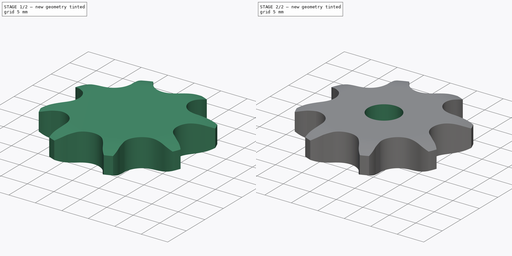
[diagram: build sequence overview — one tinted view per stage of 2, left to right]
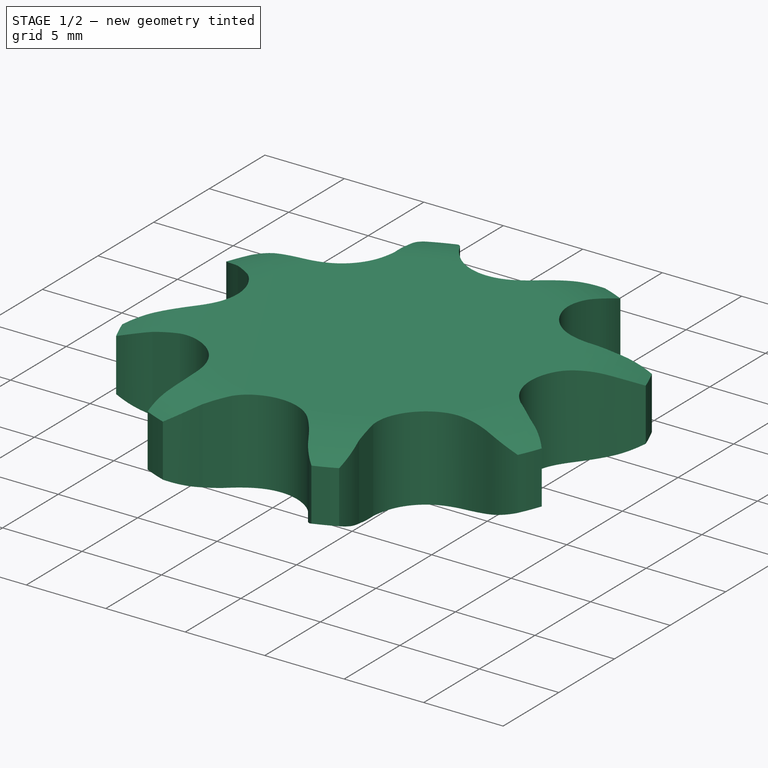
[diagram: stage 1 of 2 — iso view after this stage's code; geometry added in this stage tinted green]
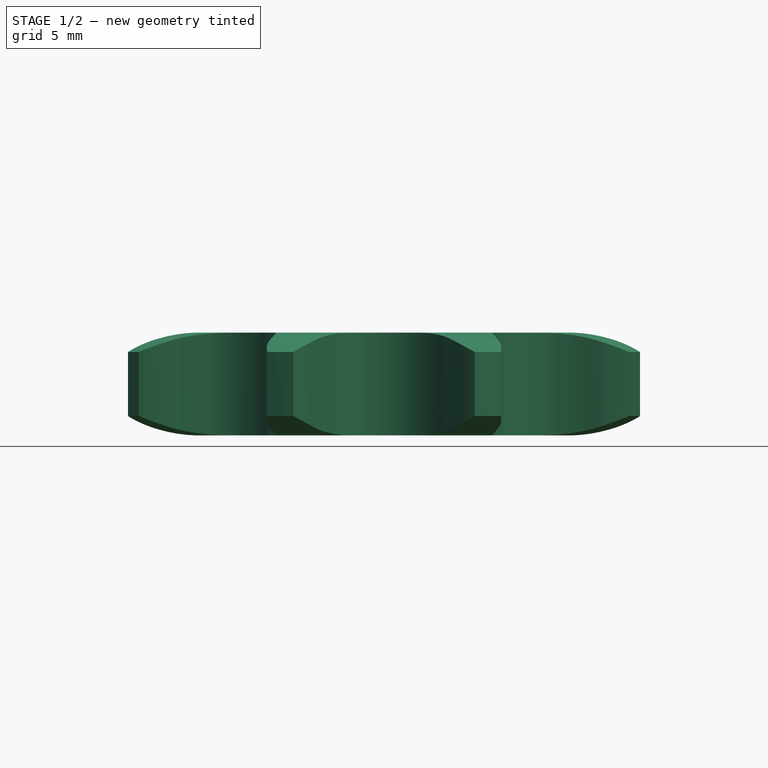
[diagram: stage 1 of 2 — front view after this stage's code; geometry added in this stage tinted green]
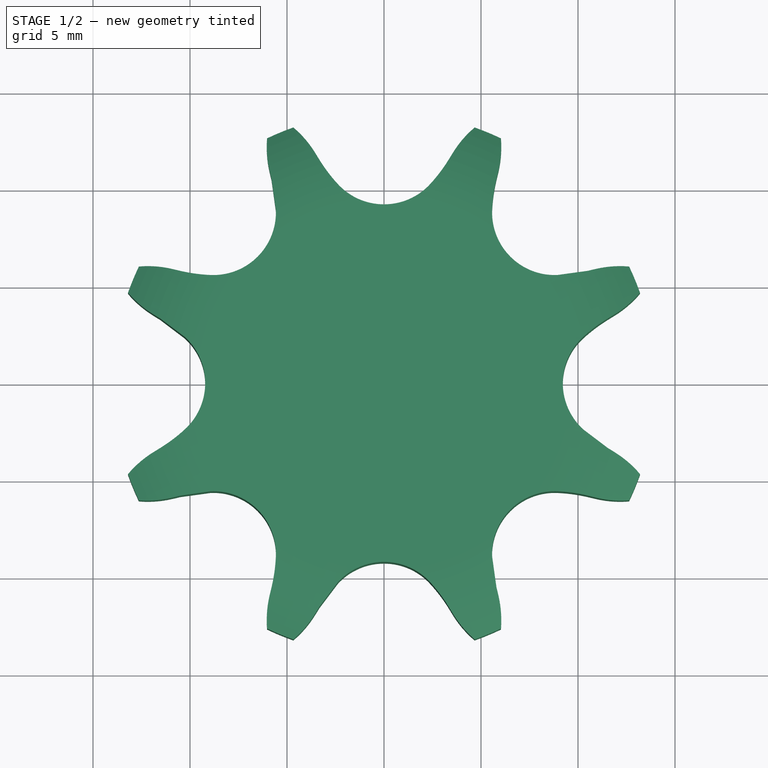
[diagram: stage 1 of 2 — top view after this stage's code; geometry added in this stage tinted green]
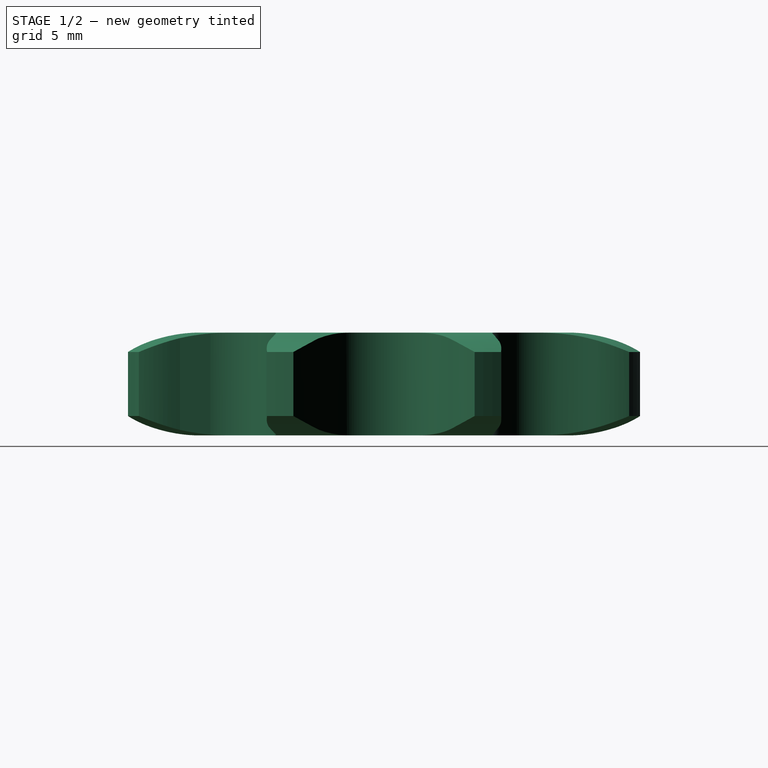
[diagram: stage 1 of 2 — right view after this stage's code; geometry added in this stage tinted green]
FCSTD DOCUMENT  (FreeCAD 0.20R29603 (Git))
Label: Plate Wheel simplex ⅜x⁷⁄₃₂
License: Attribution 4.0 International (CC BY 4.0)
LicenseURL: http://creativecommons.org/licenses/by/4.0/
objects: Sketcher::SketchObject×2, Spreadsheet::Sheet×1, Part::Part2DObjectPython×1, PartDesign::Pad×1, PartDesign::Groove×1, PartDesign::Pocket×1, PartDesign::Body×1
note: 10 computed .brp shape members not serialized (recipe doc carries the construction recipe); baked Part::Feature solids carry a one-line shape summary decoded from their .brp

FEATURE [Spreadsheet::Sheet] Spreadsheet  label="Data"
  TeethNumber = 0
  cells = A1=Teeth Number; B1=P (Pitch); C1=Wc (Chain width); D1=Dr (Roller diameter); E1=Tr (Tooth radius); F1=Rw (Radius width); G1=Wt (Tooth width); H1=z (Number of teeth); I1=De (External Diameter); J1=Dp (pitch diameter); K1=D (Hole diameter); L1=H (Total height); A2==hiddenref(.TeethNumber.String); B2(P)==.B3; C2(Wc)==.C3; D2(Dr)==.D3; E2(Tr)==.E3; F2(Rw)==.F3; G2(Wt)==.G3; H2(z)==.H3; I2(De)==.I3; J2(Dp)==.J3; K2(D)==.K3; L2(H)==.L3; A3=Z 8; B3=9.525; C3=5.72; D3=6.35; E3=10; F3=1; G3=5.3; H3=8; I3=28; J3=24.89; K3=6; L3=5.3; A4=Z 9; B4=9.525; C4=5.72; D4=6.35; E4=10; F4=1; G4=5.3; H4=9; I4=31; J4=27.85; K4=8; L4=5.3; A5=Z 10; B5=9.525; C5=5.72; D5=6.35; E5=10; F5=1; G5=5.3; H5=10; I5=34; J5=30.82; K5=8; L5=5.3; A6=Z 11; B6=9.525; C6=5.72; D6=6.35; E6=10; F6=1; G6=5.3; H6=11; I6=37; J6=33.8; K6=8; L6=5.3; A7=Z 12; B7=9.525; C7=5.72; D7=6.35; E7=10; F7=1; G7=5.3; H7=12; I7=40; J7=36.8; K7=8; L7=5.3; A8=Z 13; B8=9.525; C8=5.72; D8=6.35; E8=10; F8=1; G8=5.3; H8=13; I8=43; J8=39.79; K8=8; L8=5.3; A9=Z 14; B9=9.525; C9=5.72; D9=6.35; E9=10; F9=1; G9=5.3; H9=14; I9=46.3; J9=42.8; K9=8; L9=5.3; A10=Z 15; B10=9.525; C10=5.72; D10=6.35; E10=10; F10=1; G10=5.3; H10=15; I10=49.3; J10=45.81; K10=8; L10=5.3; A11=Z 16; B11=9.525; C11=5.72; D11=6.35; E11=10; F11=1; G11=5.3; H11=16; I11=52.3; J11=48.82; K11=10; L11=5.3; A12=Z 17; B12=9.525; C12=5.72; D12=6.35; E12=10; F12=1; G12=5.3; H12=17; I12=55.3; J12=51.83; K12=10; L12=5.3; A13=Z 18; B13=9.525; C13=5.72; D13=6.35; E13=10; F13=1; G13=5.3; H13=18; I13=58.3; J13=54.85; K13=10; L13=5.3; A14=Z 19; B14=9.525; C14=5.72; D14=6.35; E14=10; F14=1; G14=5.3; H14=19; I14=61.3; J14=57.87; K14=10; L14=5.3; A15=Z 20; B15=9.525; C15=5.72; D15=6.35; E15=10; F15=1; G15=5.3; H15=20; I15=64.3; J15=60.89; K15=10; L15=5.3; A16=Z 21; B16=9.525; C16=5.72; D16=6.35; E16=10; F16=1; G16=5.3; H16=21; I16=68; J16=63.91; K16=10; L16=5.3; A17=Z 22; B17=9.525; C17=5.72; D17=6.35; E17=10; F17=1; G17=5.3; H17=22; +340 more cells
  expr: .TeethNumber.Enum = cells[<<A3:|>>]
  expr: .cells.Bind.B2.ZZ2 = tuple(.cells; <<B>> + str(hiddenref(TeethNumber) + 3); <<ZZ>> + str(hiddenref(TeethNumber) + 3))
FEATURE [Sketcher::SketchObject] Sketch  label="Radius"
  FullyConstrained = true
  MapMode = 5
  Placement = pos=(0,0,0) rot=(1,0,0;1.5708rad)
  Support = -> [XZ_Plane]
  expr: .Constraints.Re = <<Data>>.De / 2
  expr: .Constraints.Rw = <<Data>>.Rw
  expr: .Constraints.Tr = <<Data>>.Tr
  expr: .Constraints.Wt = <<Data>>.Wt
  sketch-geometry (10):
    g0: LineSegment StartX=9.6411 StartY=0 StartZ=0 EndX=14 EndY=0 EndZ=0
    g1: LineSegment StartX=14 StartY=0 StartZ=0 EndX=14 EndY=1 EndZ=0
    g2: ArcOfCircle CenterX=9.6411 CenterY=10 CenterZ=0 NormalX=0 NormalY=0 NormalZ=1 AngleXU=0 Radius=10 StartAngle=4.71239 EndAngle=5.16342
    g3: LineSegment StartX=14 StartY=1 StartZ=0 EndX=14 EndY=4.3 EndZ=0
    g4: LineSegment StartX=9.6411 StartY=5.3 StartZ=0 EndX=14 EndY=5.3 EndZ=0
    g5: LineSegment StartX=14 StartY=5.3 StartZ=0 EndX=14 EndY=4.3 EndZ=0
    g6: ArcOfCircle CenterX=9.6411 CenterY=-4.7 CenterZ=0 NormalX=0 NormalY=0 NormalZ=1 AngleXU=0 Radius=10 StartAngle=1.11977 EndAngle=1.5708
    g7: LineSegment StartX=14 StartY=5.3 StartZ=0 EndX=18.3589 EndY=5.3 EndZ=0
    g8: LineSegment StartX=18.3589 StartY=5.3 StartZ=0 EndX=18.3589 EndY=0 EndZ=0
    g9: LineSegment StartX=18.3589 StartY=0 StartZ=0 EndX=14 EndY=0 EndZ=0
  constraints (28):
    c: PointOnObject(g0,g-1)
    c: Horizontal(g0)
    c: Coincident(g0,g1)
    c: Vertical(g1)
    c: Tangent(g2,g0) = -1.5708
    c: Coincident(g2,g1)
    c: Coincident(g3,g1)
    c: Vertical(g3)
    c: Horizontal(g4)
    c: Coincident(g4,g5)
    c: Vertical(g5)
    c: Coincident(g6,g5)
    c: Tangent(g6,g4) = 1.5708
    c: Coincident(g5,g3)
    c: Equal(g2,g6)
    c: Equal(g5,g1)
    c: Radius(g2) = 10  'Tr'
    c: DistanceY(g0,g4) = 5.3  'Wt'
    c: DistanceX(g0) = 14  'Re'
    c: DistanceY(g1,g1) = 1  'Rw'
    c: Coincident(g4,g7)
    c: Coincident(g7,g8)
    c: Vertical(g8)
    c: Coincident(g8,g9)
    c: Coincident(g9,g0)
    c: Horizontal(g7)
    c: Horizontal(g9)
    c: Equal(g0,g9)
FEATURE [Part::Part2DObjectPython] Sprocket  label="Teeth sketch"  # Draft 2D object (typed FeaturePython)
  ANSISize = 35
  NumberOfTeeth = 8
  Pitch = 9.525
  RollerDiameter = 6.35
  expr: NumberOfTeeth = <<Data>>.z
  expr: Pitch = <<Data>>.P
  expr: RollerDiameter = <<Data>>.Dr
FEATURE [PartDesign::Pad] Pad  label="Teeth"
  Direction = (0,0,1)
  Length = 5.3
  Length2 = 100
  Profile = -> Sprocket
  Type = 0
  expr: Length = <<Data>>.Wt
FEATURE [PartDesign::Groove] Groove  label="Teeth Radius"
  Angle = 360
  Axis = (-3e-16,3e-16,1)
  Base = (0,0,0)
  BaseFeature = -> Pad
  Profile = -> Sketch
  ReferenceAxis = -> Z_Axis
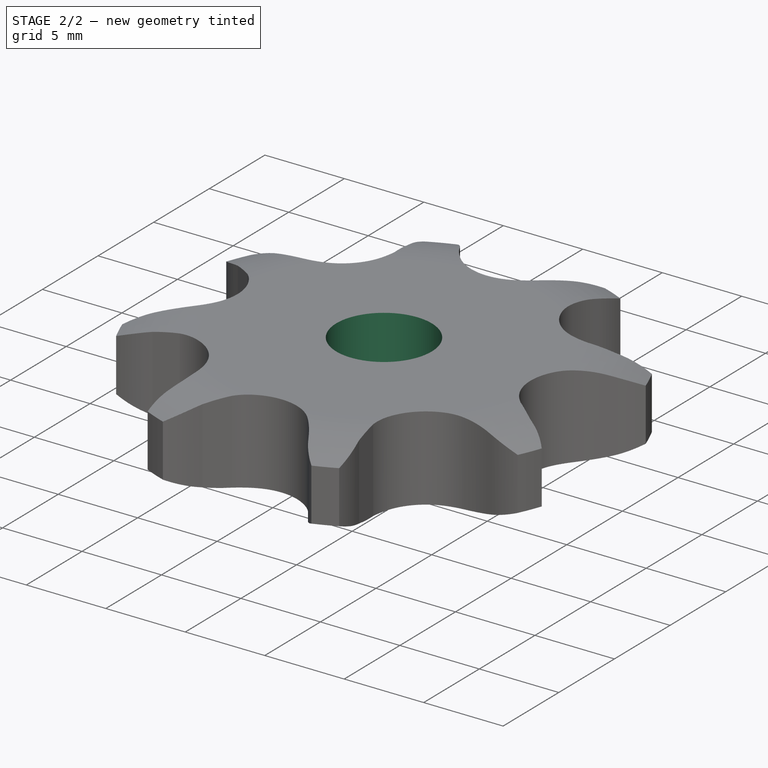
[diagram: stage 2 of 2 — iso view after this stage's code; geometry added in this stage tinted green]
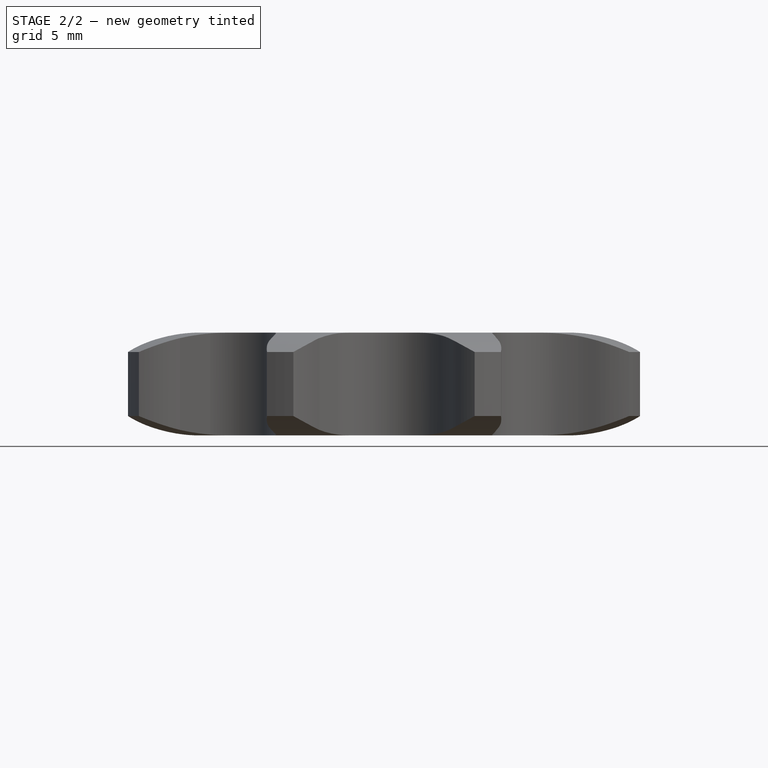
[diagram: stage 2 of 2 — front view after this stage's code; geometry added in this stage tinted green]
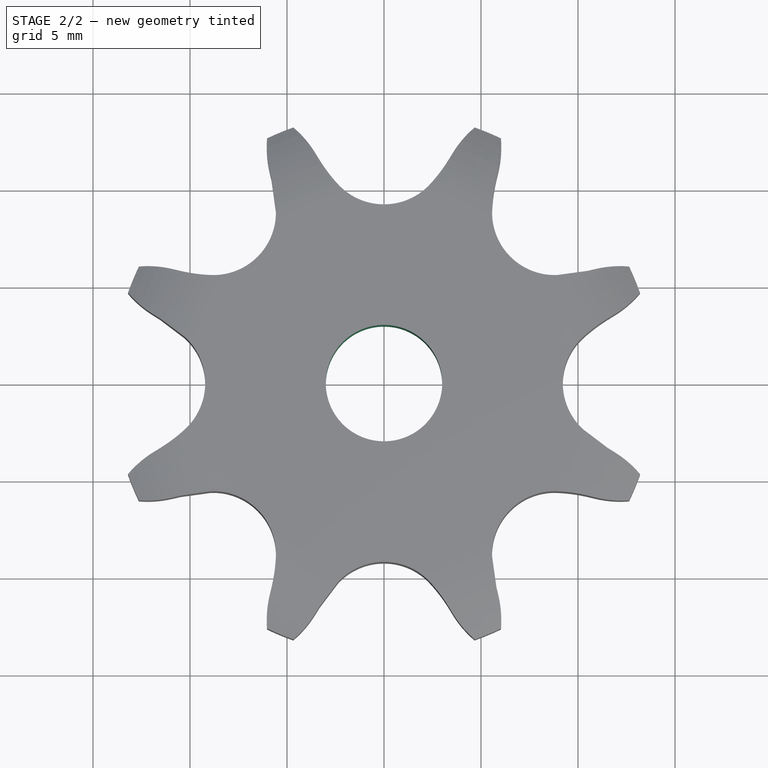
[diagram: stage 2 of 2 — top view after this stage's code; geometry added in this stage tinted green]
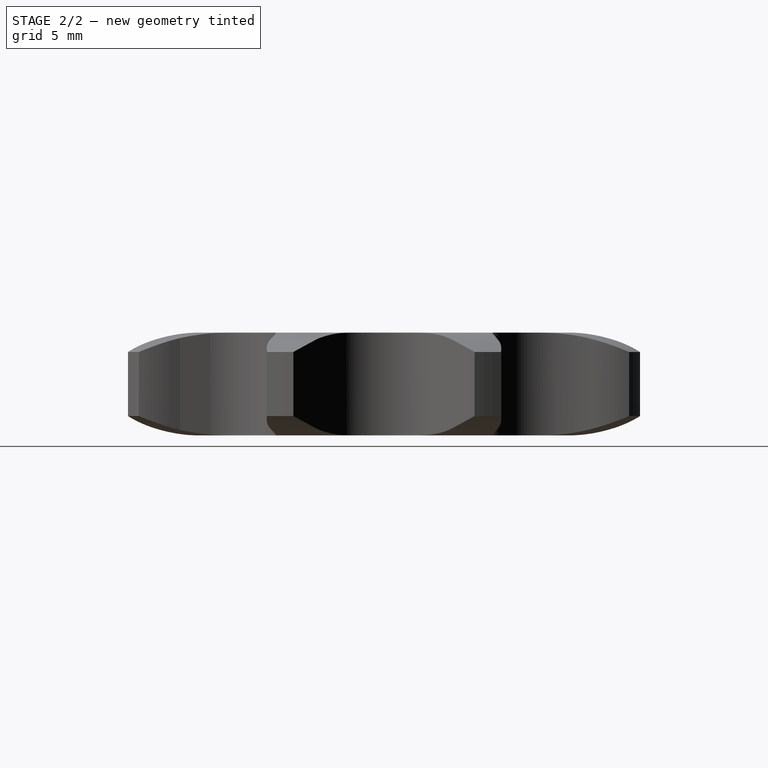
[diagram: stage 2 of 2 — right view after this stage's code; geometry added in this stage tinted green]
FEATURE [Sketcher::SketchObject] Sketch001  label="Hole Sketch"
  FullyConstrained = true
  MapMode = 5
  Support = -> [XY_Plane]
  expr: .Constraints.D = <<Data>>.D
  sketch-geometry (1):
    g0: Circle CenterX=0 CenterY=0 CenterZ=0 NormalX=0 NormalY=0 NormalZ=1 AngleXU=0 Radius=3
  constraints (2):
    c: Coincident(g0,g-1)
    c: Diameter(g0) = 6  'D'
FEATURE [PartDesign::Pocket] Pocket  label="Hole"
  BaseFeature = -> Groove
  Direction = (0,0,-1)
  Length = 5
  Length2 = 100
  Midplane = true
  Profile = -> Sketch001
  Type = 1
FEATURE [PartDesign::Body] Body  label="Plate Wheel simplex ⅜x⁷⁄₃₂"
  Group = -> [Sprocket,Pad,Sketch,Groove,Sketch001,Pocket]
  Origin = -> Origin
  Tip = -> Pocket
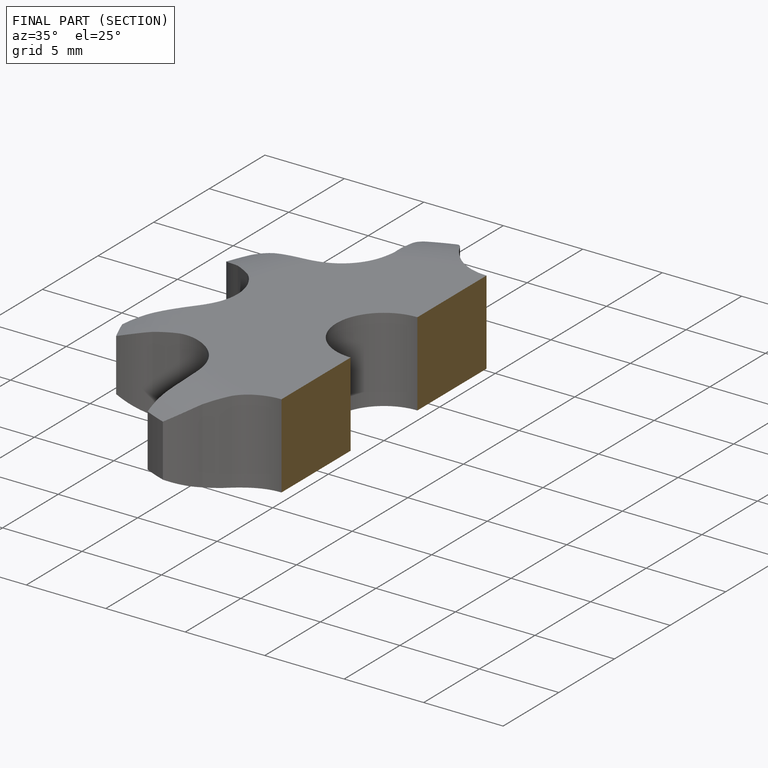
[diagram: finished part — half-section view (interior)]
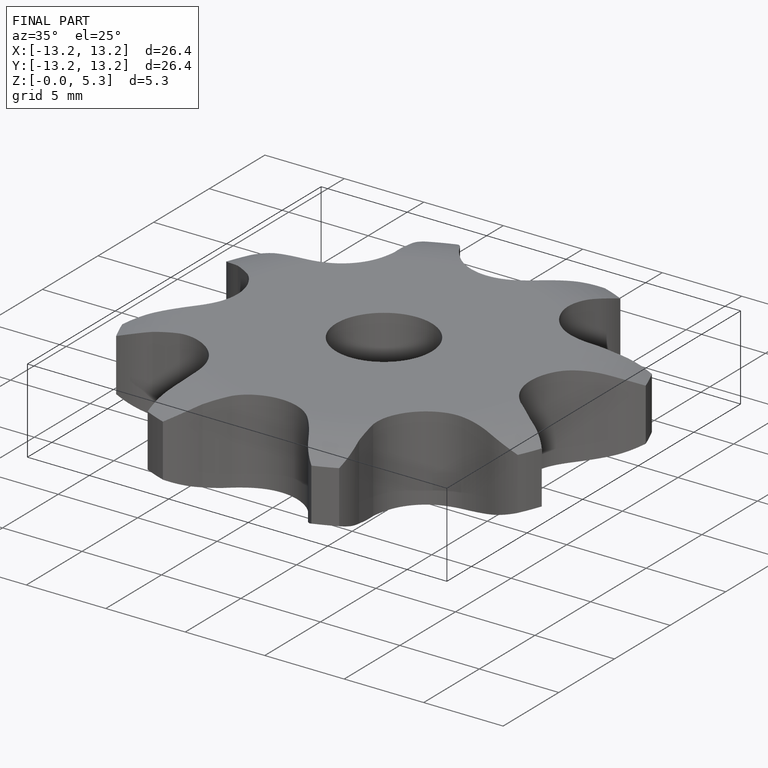
[diagram: finished part — iso view with bounding-box wireframe]
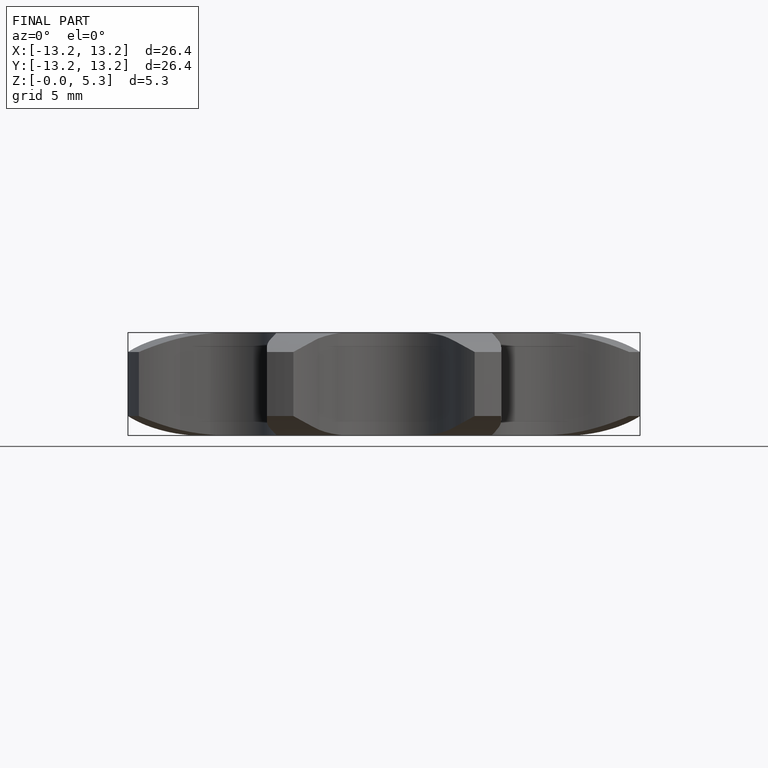
[diagram: finished part — front view with bounding-box wireframe]
